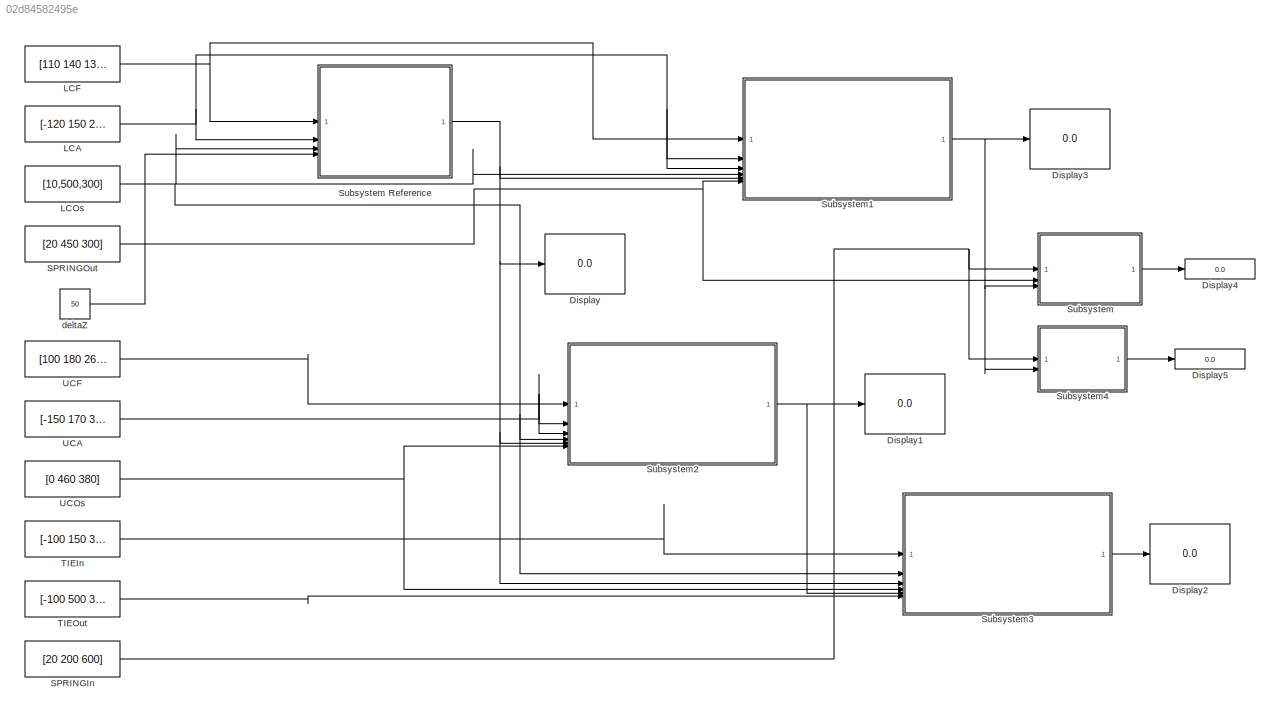
MODEL slx_02d84582495e
KIND model
CONFIG AbsTol = auto
CONFIG EnableMultiTasking = off
CONFIG FixedStep = auto
CONFIG MaxStep = auto
CONFIG MinStep = auto
CONFIG RelTol = 1e-3
CONFIG SampleTimeConstraint = Unconstrained
CONFIG SolverName = VariableStepAuto
CONFIG StartTime = 0.0
CONFIG StopTime = 10.0
BLOCK [Display] Display
  Decimation = 1
  Format = bank
BLOCK [Display] Display1
  Decimation = 1
  Format = bank
BLOCK [Display] Display2
  Decimation = 1
  Format = bank
BLOCK [Display] Display3
  Decimation = 1
  Format = bank
BLOCK [Display] Display4
  Decimation = 1
  Format = bank
BLOCK [Display] Display5
  Decimation = 1
  Format = bank
BLOCK [Constant] LCA
  Value = [-120 150 250]
BLOCK [Constant] LCF
  Value = [110 140 130]
BLOCK [Constant] LCOs
  Value = [10,500,300]
BLOCK [Constant] SPRINGIn
  Value = [20 200 600]
BLOCK [Constant] SPRINGOut
  Value = [20 450 300]
BLOCK [SubSystem] Subsystem
  ReferencedSubsystem = deltadistance
BLOCK [SubSystem] Subsystem Reference
  ReferencedSubsystem = Point2SHP
BLOCK [SubSystem] Subsystem1
  ReferencedSubsystem = Point3S
BLOCK [SubSystem] Subsystem2
  ReferencedSubsystem = Point3S
BLOCK [SubSystem] Subsystem3
  ReferencedSubsystem = Point3S
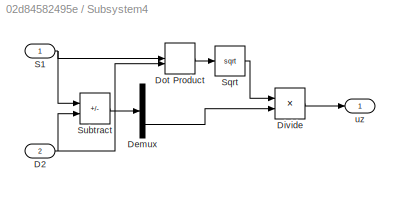
BLOCK [SubSystem] Subsystem4
BLOCK [Inport] Subsystem4/D2
  Port = 2
BLOCK [Demux] Subsystem4/Demux
  Outputs = 3
BLOCK [Product] Subsystem4/Divide
  Inputs = /*
BLOCK [DotProduct] Subsystem4/Dot Product
  OutDataTypeStr = Inherit: Inherit via internal rule
BLOCK [Inport] Subsystem4/S1
BLOCK [Sqrt] Subsystem4/Sqrt
BLOCK [Sum] Subsystem4/Subtract
  IconShape = rectangular
  Inputs = +-
BLOCK [Outport] Subsystem4/uz
BLOCK [Constant] TIEIn
  Value = [-100 150 300]
BLOCK [Constant] TIEOut
  Value = [-100 500 350]
BLOCK [Constant] UCA
  Value = [-150 170 360]
BLOCK [Constant] UCF
  Value = [100 180 260]
BLOCK [Constant] UCOs
  Value = [0 460 380]
BLOCK [Constant] deltaZ
  Value = 50
NET LCA:1 -> Subsystem Reference:2, Subsystem1:2, Subsystem1:3
NET LCF:1 -> Subsystem Reference:1, Subsystem1:1
NET LCOs:1 -> Subsystem Reference:3, Subsystem1:4, Subsystem2:4, Subsystem3:2
NET SPRINGIn:1 -> Subsystem4:1, Subsystem:1
NET SPRINGOut:1 -> Subsystem1:6, Subsystem:2
NET Subsystem Reference:1 -> Display:1, Subsystem1:5, Subsystem2:5, Subsystem3:3
NET Subsystem1:1 -> Display3:1, Subsystem4:2, Subsystem:3
NET Subsystem2:1 -> Display1:1, Subsystem3:5
LINE Subsystem3:1 -> Display2:1
NET Subsystem4/D2:1 -> Subsystem4/Dot Product:2, Subsystem4/Subtract:2
LINE Subsystem4/Demux:3 -> Subsystem4/Divide:2
LINE Subsystem4/Divide:1 -> Subsystem4/uz:1
LINE Subsystem4/Dot Product:1 -> Subsystem4/Sqrt:1
NET Subsystem4/S1:1 -> Subsystem4/Dot Product:1, Subsystem4/Subtract:1
LINE Subsystem4/Sqrt:1 -> Subsystem4/Divide:1
LINE Subsystem4/Subtract:1 -> Subsystem4/Demux:1
LINE Subsystem4:1 -> Display5:1
LINE Subsystem:1 -> Display4:1
LINE TIEIn:1 -> Subsystem3:1
LINE TIEOut:1 -> Subsystem3:6
NET UCA:1 -> Subsystem2:2, Subsystem2:3
LINE UCF:1 -> Subsystem2:1
NET UCOs:1 -> Subsystem2:6, Subsystem3:4
LINE deltaZ:1 -> Subsystem Reference:4
note: NET lines group one-source signal fan-out (src -> all destinations, sorted); 1:1 wires keep LINE
